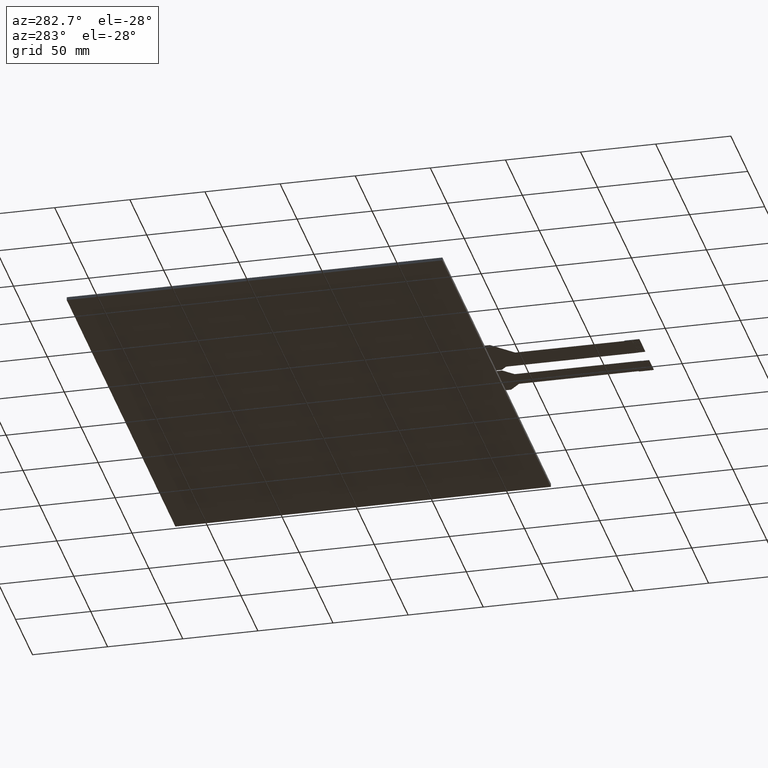
[diagram: clean part render]
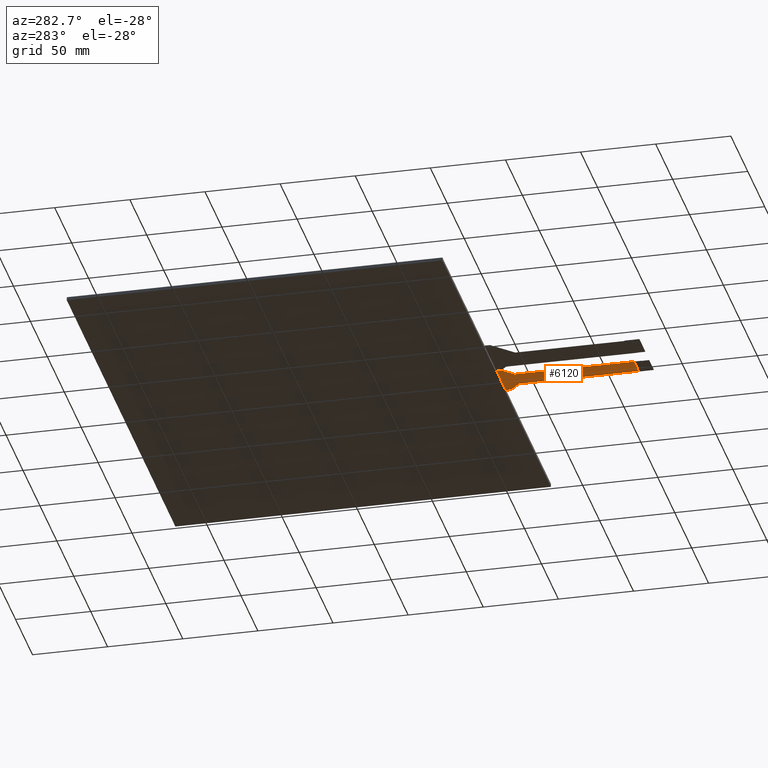
[diagram: same view with one face highlighted and labeled with its STEP entity id]
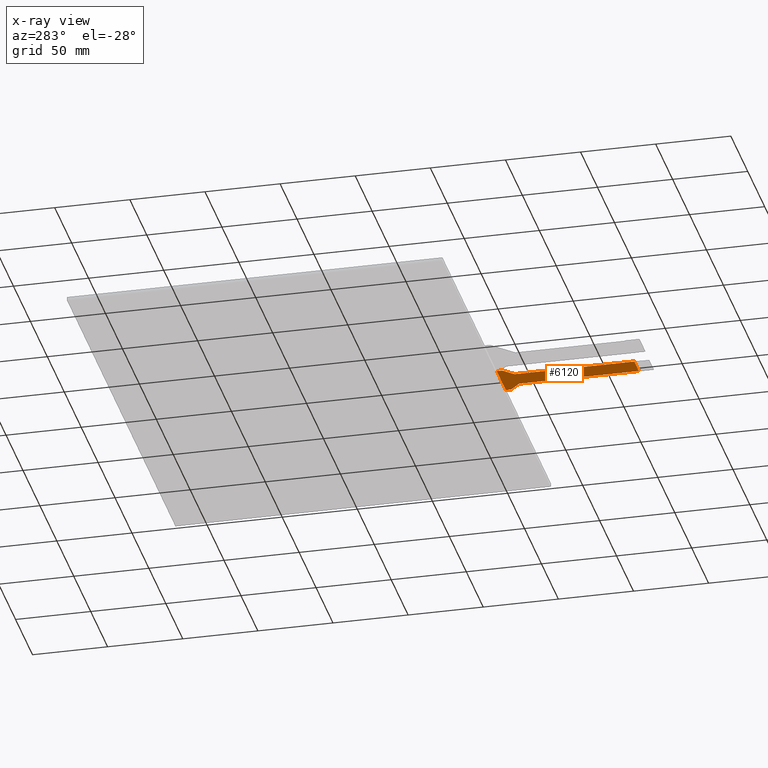
[diagram: x-ray of the same camera — body ghosted, the highlighted face saturated]
A machine part, auxiliary view. The second image highlights one B-rep face of the part: STEP entity #6120.
The next image is the same camera in x-ray: the body ghosted, the highlighted face saturated — about 0% of this face is hidden behind the body in this view.
In plain terms, the highlighted planar face has unit normal (0, 0, -1).
Its self-contained STEP definition (entity closure, byte-faithful):
#350=PLANE('',#6458);
#644=FACE_OUTER_BOUND('',#938,.T.);
#938=EDGE_LOOP('',(#5722,#5723,#5724,#5725,#5726,#5727,#5728,#5729,#5730,
#5731,#5732,#5733));
#970=LINE('',#7979,#1810);
#973=LINE('',#7990,#1813);
#1003=LINE('',#8068,#1843);
#1750=LINE('',#9584,#2590);
#1756=LINE('',#9596,#2596);
#1757=LINE('',#9598,#2597);
#1758=LINE('',#9601,#2598);
#1760=LINE('',#9604,#2600);
#1810=VECTOR('',#6496,10.);
#1813=VECTOR('',#6507,10.);
#1843=VECTOR('',#6571,10.);
#2590=VECTOR('',#7852,10.);
#2596=VECTOR('',#7866,10.);
#2597=VECTOR('',#7869,10.);
#2598=VECTOR('',#7872,10.);
#2600=VECTOR('',#7876,10.);
#2643=CIRCLE('',#6162,1.);
#2644=CIRCLE('',#6165,1.);
#2654=CIRCLE('',#6183,1.);
#2655=CIRCLE('',#6186,1.);
#2668=VERTEX_POINT('',#7961);
#2669=VERTEX_POINT('',#7963);
#2675=VERTEX_POINT('',#7977);
#2676=VERTEX_POINT('',#7981);
#2677=VERTEX_POINT('',#7982);
#2708=VERTEX_POINT('',#8060);
#2709=VERTEX_POINT('',#8062);
#2710=VERTEX_POINT('',#8066);
#2711=VERTEX_POINT('',#8070);
#3212=VERTEX_POINT('',#9583);
#3214=VERTEX_POINT('',#9594);
#3215=VERTEX_POINT('',#9600);
#3244=EDGE_CURVE('',#2668,#2669,#2643,.T.);
#3252=EDGE_CURVE('',#2668,#2675,#970,.T.);
#3253=EDGE_CURVE('',#2676,#2677,#2644,.T.);
#3257=EDGE_CURVE('',#2676,#2669,#973,.T.);
#3293=EDGE_CURVE('',#2708,#2709,#2654,.T.);
#3296=EDGE_CURVE('',#2708,#2710,#1003,.T.);
#3297=EDGE_CURVE('',#2711,#2710,#2655,.T.);
#4054=EDGE_CURVE('',#2675,#3212,#1750,.T.);
#4060=EDGE_CURVE('',#2711,#3214,#1756,.T.);
#4061=EDGE_CURVE('',#3212,#2709,#1757,.T.);
#4062=EDGE_CURVE('',#3215,#2677,#1758,.T.);
#4064=EDGE_CURVE('',#3215,#3214,#1760,.T.);
#5722=ORIENTED_EDGE('',*,*,#3253,.F.);
#5723=ORIENTED_EDGE('',*,*,#3257,.T.);
#5724=ORIENTED_EDGE('',*,*,#3244,.F.);
#5725=ORIENTED_EDGE('',*,*,#3252,.T.);
#5726=ORIENTED_EDGE('',*,*,#4054,.T.);
#5727=ORIENTED_EDGE('',*,*,#4061,.T.);
#5728=ORIENTED_EDGE('',*,*,#3293,.F.);
#5729=ORIENTED_EDGE('',*,*,#3296,.T.);
#5730=ORIENTED_EDGE('',*,*,#3297,.F.);
#5731=ORIENTED_EDGE('',*,*,#4060,.T.);
#5732=ORIENTED_EDGE('',*,*,#4064,.F.);
#5733=ORIENTED_EDGE('',*,*,#4062,.T.);
#6120=ADVANCED_FACE('',(#644),#350,.T.);
#6162=AXIS2_PLACEMENT_3D('',#7964,#6485,#6486);
#6165=AXIS2_PLACEMENT_3D('',#7983,#6499,#6500);
#6183=AXIS2_PLACEMENT_3D('',#8063,#6565,#6566);
#6186=AXIS2_PLACEMENT_3D('',#8071,#6574,#6575);
#6458=AXIS2_PLACEMENT_3D('',#9603,#7874,#7875);
#6485=DIRECTION('center_axis',(0.,0.,-1.));
#6486=DIRECTION('ref_axis',(-0.923166632761977,0.384400010607327,0.));
#6496=DIRECTION('',(3.96066184927592E-16,-1.,0.));
#6499=DIRECTION('center_axis',(0.,0.,1.));
#6500=DIRECTION('ref_axis',(0.923166632761976,-0.384400010607329,0.));
#6507=DIRECTION('',(-0.709730526852055,-0.704473263690187,0.));
#6565=DIRECTION('center_axis',(0.,0.,-1.));
#6566=DIRECTION('ref_axis',(0.92458924037976,0.380965532002541,0.));
#6571=DIRECTION('',(-0.704473263690187,0.709730526852056,0.));
#6574=DIRECTION('center_axis',(0.,0.,1.));
#6575=DIRECTION('ref_axis',(-0.924589240379761,-0.380965532002539,0.));
#7852=DIRECTION('',(-1.,0.,0.));
#7866=DIRECTION('',(0.,1.,0.));
#7869=DIRECTION('',(-1.23909335726321E-16,1.,0.));
#7872=DIRECTION('',(0.,-1.,0.));
#7874=DIRECTION('center_axis',(0.,0.,-1.));
#7875=DIRECTION('ref_axis',(-1.,0.,0.));
#7876=DIRECTION('',(-1.,-1.66014657887874E-16,0.));
#7961=CARTESIAN_POINT('',(20.2999999999999,-137.266392877478,-0.3));
#7963=CARTESIAN_POINT('',(20.5955267363097,-136.556662350626,-0.3));
#7964=CARTESIAN_POINT('Origin',(21.2999999999999,-137.266392877478,-0.3));
#7977=CARTESIAN_POINT('',(20.3,-216.55,-0.3));
#7979=CARTESIAN_POINT('',(20.3,-226.55,-0.3));
#7981=CARTESIAN_POINT('',(26.7544732636901,-130.443337649374,-0.3));
#7982=CARTESIAN_POINT('',(27.0499999999999,-129.733607122522,-0.3));
#7983=CARTESIAN_POINT('Origin',(26.0499999999999,-129.733607122522,-0.3));
#7990=CARTESIAN_POINT('',(20.2999999999999,-136.85,-0.3));
#8060=CARTESIAN_POINT('',(6.509730526852,-136.657937471082,-0.3));
#8062=CARTESIAN_POINT('',(6.79999999999995,-137.362410734773,-0.3));
#8063=CARTESIAN_POINT('Origin',(5.79999999999995,-137.362410734773,-0.3));
#8066=CARTESIAN_POINT('',(0.340269473147878,-130.442435663246,-0.3));
#8068=CARTESIAN_POINT('',(0.0499999999999368,-130.15,-0.3));
#8070=CARTESIAN_POINT('',(0.0499999999999368,-129.737962399556,-0.3));
#8071=CARTESIAN_POINT('Origin',(1.04999999999994,-129.737962399556,-0.3));
#9583=CARTESIAN_POINT('',(6.79999999999996,-216.55,-0.3));
#9584=CARTESIAN_POINT('',(10.1749999999999,-216.55,-0.3));
#9594=CARTESIAN_POINT('',(0.0499999999999368,-126.55,-0.3));
#9596=CARTESIAN_POINT('',(0.0499999999999368,-126.55,-0.3));
#9598=CARTESIAN_POINT('',(6.79999999999995,-136.950373134328,-0.3));
#9600=CARTESIAN_POINT('',(27.0499999999999,-126.55,-0.3));
#9601=CARTESIAN_POINT('',(27.0499999999999,-130.15,-0.3));
#9603=CARTESIAN_POINT('Origin',(13.5499999999999,-176.55,-0.3));
#9604=CARTESIAN_POINT('',(87.025,-126.55,-0.3));